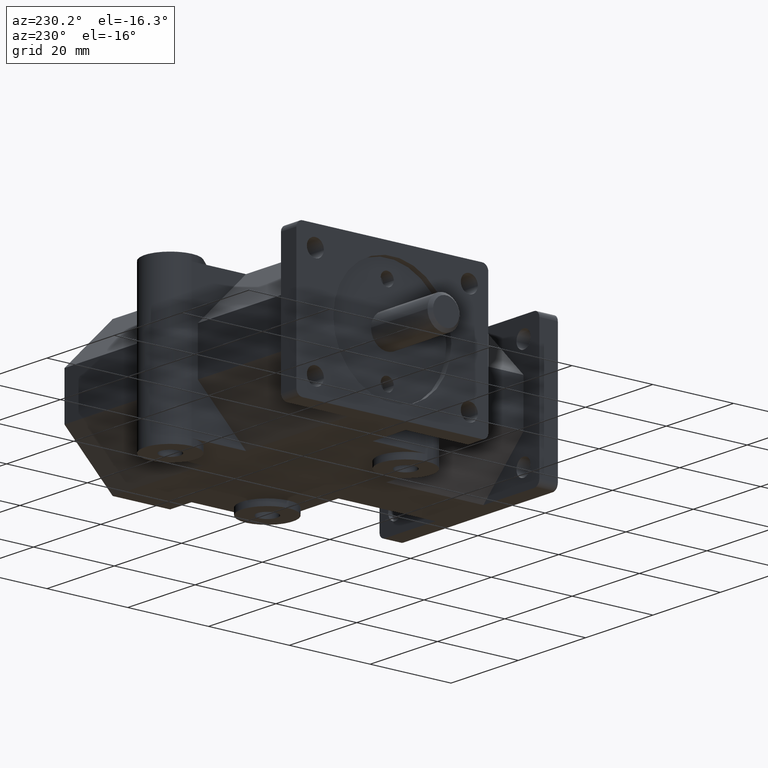
[diagram: clean part render]
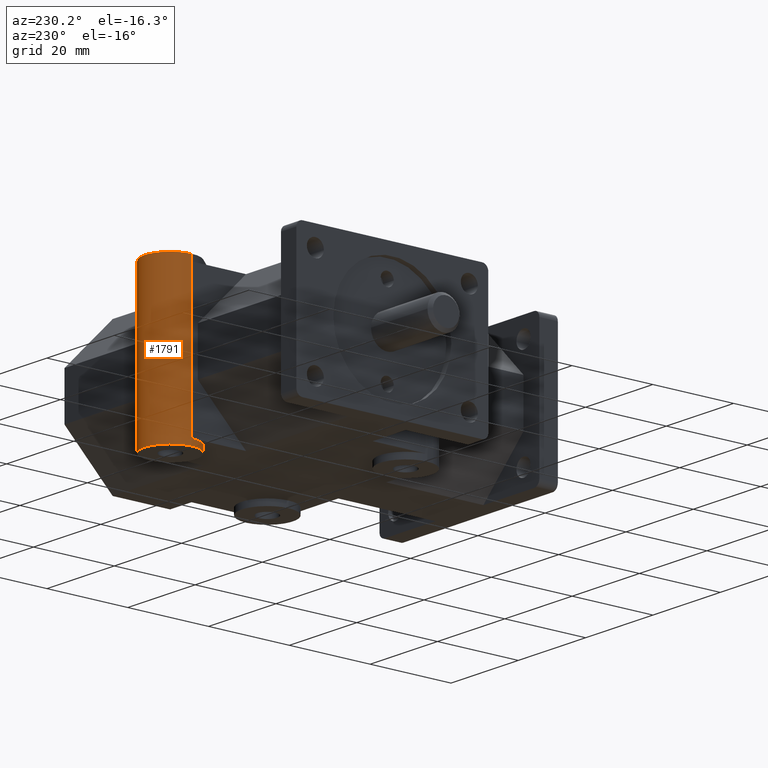
[diagram: same view with one face highlighted and labeled with its STEP entity id]
A machine part, auxiliary view. The second image highlights one B-rep face of the part: STEP entity #1791.
In plain terms, the highlighted cylindrical surface (bore or boss wall) has radius 6.35 mm, axis along (0, 0, 1).
Its self-contained STEP definition (entity closure, byte-faithful):
#119=FACE_OUTER_BOUND('',#223,.T.);
#223=EDGE_LOOP('',(#1230,#1231,#1232,#1233,#1234,#1235,#1236,#1237,#1238,
#1239));
#362=CIRCLE('',#1910,6.35);
#363=CIRCLE('',#1911,6.35);
#364=CIRCLE('',#1912,6.35);
#365=CIRCLE('',#1913,6.35);
#449=LINE('',#2667,#622);
#450=LINE('',#2671,#623);
#451=LINE('',#2675,#624);
#452=LINE('',#2679,#625);
#453=LINE('',#2681,#626);
#622=VECTOR('',#2106,6.35);
#623=VECTOR('',#2109,1.);
#624=VECTOR('',#2112,1.);
#625=VECTOR('',#2115,6.35);
#626=VECTOR('',#2118,1.);
#795=VERTEX_POINT('',#2665);
#796=VERTEX_POINT('',#2666);
#797=VERTEX_POINT('',#2668);
#798=VERTEX_POINT('',#2670);
#799=VERTEX_POINT('',#2672);
#800=VERTEX_POINT('',#2674);
#801=VERTEX_POINT('',#2676);
#802=VERTEX_POINT('',#2678);
#968=EDGE_CURVE('',#795,#796,#449,.T.);
#969=EDGE_CURVE('',#795,#797,#362,.T.);
#970=EDGE_CURVE('',#798,#797,#450,.T.);
#971=EDGE_CURVE('',#798,#799,#363,.T.);
#972=EDGE_CURVE('',#800,#799,#451,.T.);
#973=EDGE_CURVE('',#801,#800,#364,.T.);
#974=EDGE_CURVE('',#801,#802,#452,.T.);
#975=EDGE_CURVE('',#802,#802,#365,.T.);
#976=EDGE_CURVE('',#801,#796,#453,.T.);
#1230=ORIENTED_EDGE('',*,*,#968,.F.);
#1231=ORIENTED_EDGE('',*,*,#969,.T.);
#1232=ORIENTED_EDGE('',*,*,#970,.F.);
#1233=ORIENTED_EDGE('',*,*,#971,.T.);
#1234=ORIENTED_EDGE('',*,*,#972,.F.);
#1235=ORIENTED_EDGE('',*,*,#973,.F.);
#1236=ORIENTED_EDGE('',*,*,#974,.T.);
#1237=ORIENTED_EDGE('',*,*,#975,.T.);
#1238=ORIENTED_EDGE('',*,*,#974,.F.);
#1239=ORIENTED_EDGE('',*,*,#976,.T.);
#1754=CYLINDRICAL_SURFACE('',#1909,6.35);
#1791=ADVANCED_FACE('',(#119),#1754,.T.);
#1909=AXIS2_PLACEMENT_3D('',#2664,#2104,#2105);
#1910=AXIS2_PLACEMENT_3D('',#2669,#2107,#2108);
#1911=AXIS2_PLACEMENT_3D('',#2673,#2110,#2111);
#1912=AXIS2_PLACEMENT_3D('',#2677,#2113,#2114);
#1913=AXIS2_PLACEMENT_3D('',#2680,#2116,#2117);
#2104=DIRECTION('center_axis',(0.,0.,1.));
#2105=DIRECTION('ref_axis',(1.,0.,0.));
#2106=DIRECTION('',(0.,0.,-1.));
#2107=DIRECTION('center_axis',(0.,0.,-1.));
#2108=DIRECTION('ref_axis',(1.,0.,0.));
#2109=DIRECTION('',(0.,0.,1.));
#2110=DIRECTION('center_axis',(0.,0.,-1.));
#2111=DIRECTION('ref_axis',(1.,0.,0.));
#2112=DIRECTION('',(0.,0.,1.));
#2113=DIRECTION('center_axis',(0.,0.,1.));
#2114=DIRECTION('ref_axis',(1.,0.,0.));
#2115=DIRECTION('',(0.,0.,-1.));
#2116=DIRECTION('center_axis',(0.,0.,1.));
#2117=DIRECTION('ref_axis',(1.,0.,0.));
#2118=DIRECTION('',(0.,0.,1.));
#2664=CARTESIAN_POINT('Origin',(0.,76.1365,0.));
#2665=CARTESIAN_POINT('',(-6.35,76.1365,19.05));
#2666=CARTESIAN_POINT('',(-6.35,76.1365,17.526));
#2667=CARTESIAN_POINT('',(-6.35,76.1365,0.));
#2668=CARTESIAN_POINT('',(6.32318266798898,76.719475940536,19.05));
#2669=CARTESIAN_POINT('Origin',(0.,76.1365,19.05));
#2670=CARTESIAN_POINT('',(6.32318266798898,76.719475940536,0.));
#2671=CARTESIAN_POINT('',(6.32318266798898,76.7194759405359,0.));
#2672=CARTESIAN_POINT('',(6.35,76.1365,0.));
#2673=CARTESIAN_POINT('Origin',(0.,76.1365,0.));
#2674=CARTESIAN_POINT('',(6.35,76.1365,-17.526));
#2675=CARTESIAN_POINT('',(6.35,76.1365,0.));
#2676=CARTESIAN_POINT('',(-6.35,76.1365,-17.526));
#2677=CARTESIAN_POINT('Origin',(0.,76.1365,-17.526));
#2678=CARTESIAN_POINT('',(-6.35,76.1365,-19.05));
#2679=CARTESIAN_POINT('',(-6.35,76.1365,0.));
#2680=CARTESIAN_POINT('Origin',(0.,76.1365,-19.05));
#2681=CARTESIAN_POINT('',(-6.35,76.1365,0.));